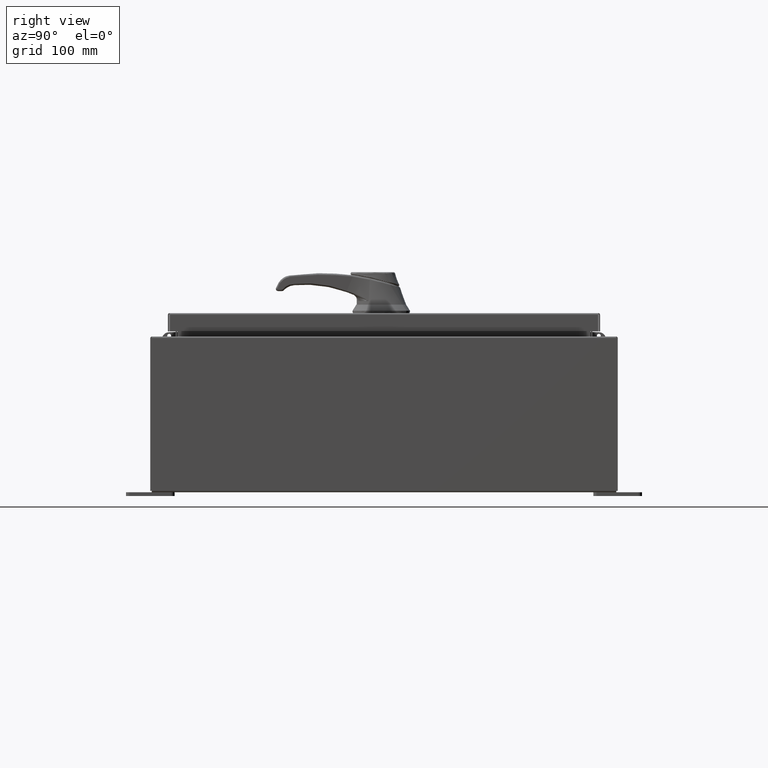
[diagram: clean part render]
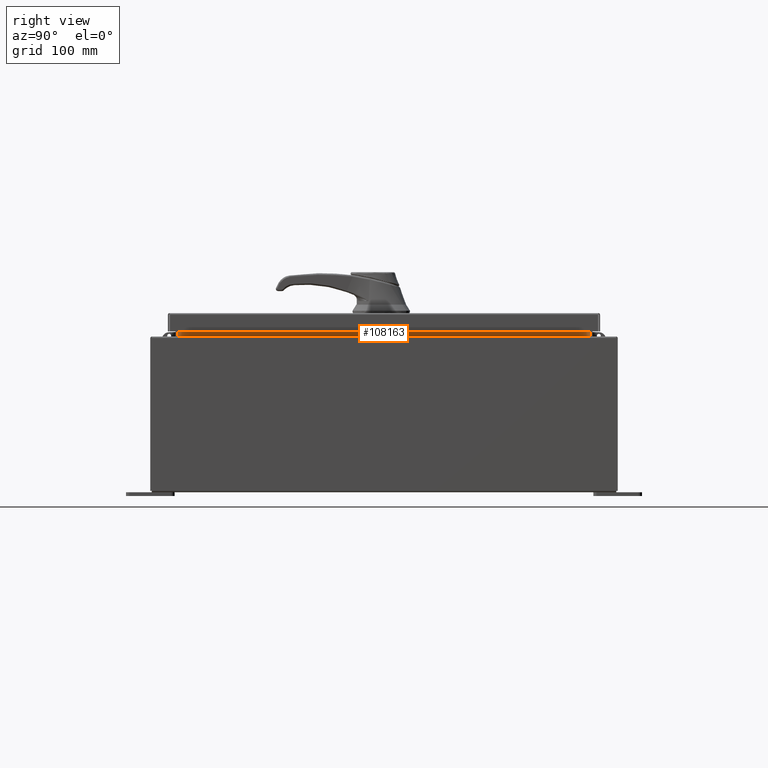
[diagram: same view with one face highlighted and labeled with its STEP entity id]
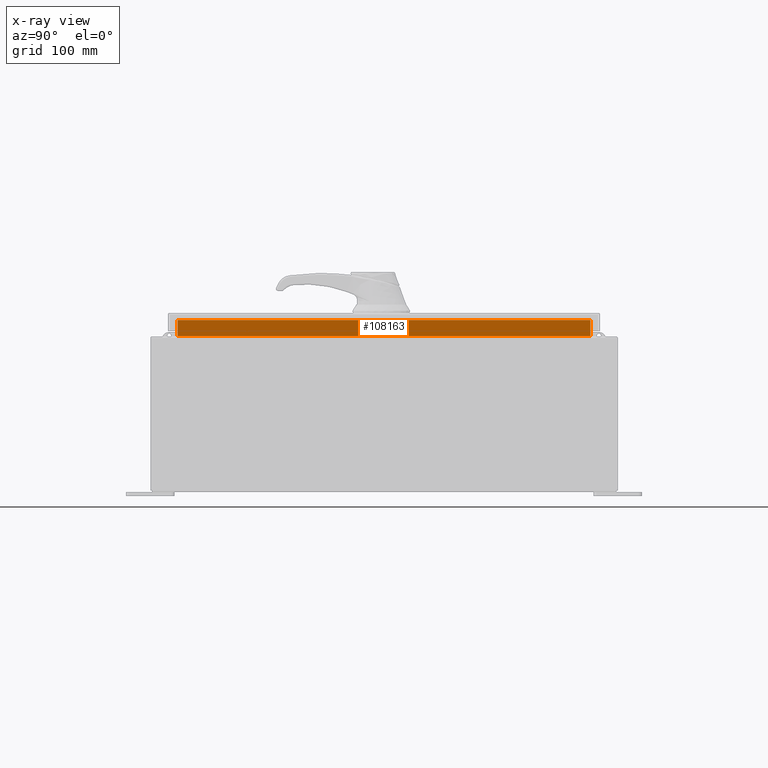
[diagram: x-ray of the same camera — body ghosted, the highlighted face saturated]
A machine part, right view. The second image highlights one B-rep face of the part: STEP entity #108163.
The next image is the same camera in x-ray: the body ghosted, the highlighted face saturated — about 0% of this face is hidden behind the body in this view.
In plain terms, the highlighted planar face has unit normal (1, -0, -0).
Its self-contained STEP definition (entity closure, byte-faithful):
#397 = EDGE_CURVE ( 'NONE', #18403, #66535, #106614, .T. ) ;
#1122 = ORIENTED_EDGE ( 'NONE', *, *, #397, .F. ) ;
#3868 = EDGE_CURVE ( 'NONE', #8913, #95774, #58158, .T. ) ;
#4200 = DIRECTION ( 'NONE',  ( -2.361913319930196000E-015, 0.0000000000000000000, -1.000000000000000000 ) ) ;
#6934 = VECTOR ( 'NONE', #53640, 39.37007874015748100 ) ;
#8913 = VERTEX_POINT ( 'NONE', #108267 ) ;
#9514 = ORIENTED_EDGE ( 'NONE', *, *, #97427, .F. ) ;
#14646 = LINE ( 'NONE', #56740, #38024 ) ;
#18403 = VERTEX_POINT ( 'NONE', #54252 ) ;
#19692 = ORIENTED_EDGE ( 'NONE', *, *, #3868, .F. ) ;
#30590 = EDGE_LOOP ( 'NONE', ( #19692, #69615, #1122, #9514 ) ) ;
#35130 = DIRECTION ( 'NONE',  ( 2.361913319930198800E-015, -0.0000000000000000000, 1.000000000000000000 ) ) ;
#38024 = VECTOR ( 'NONE', #47577, 39.37007874015748100 ) ;
#39224 = CARTESIAN_POINT ( 'NONE',  ( 10.69970000000003000, -10.59375000000000200, 8.762900000000009000 ) ) ;
#47577 = DIRECTION ( 'NONE',  ( 0.0000000000000000000, 1.000000000000000000, 0.0000000000000000000 ) ) ;
#50398 = AXIS2_PLACEMENT_3D ( 'NONE', #82822, #56679, #4200 ) ;
#53640 = DIRECTION ( 'NONE',  ( 1.031494227696241200E-016, -1.000000000000000000, 3.094482683088723800E-016 ) ) ;
#54252 = CARTESIAN_POINT ( 'NONE',  ( 10.69970000000002800, -10.59375000000000200, 7.938300000000011500 ) ) ;
#56679 = DIRECTION ( 'NONE',  ( 1.000000000000000000, -1.218149977913431200E-031, -2.361913319930196000E-015 ) ) ;
#56740 = CARTESIAN_POINT ( 'NONE',  ( 10.69970000000003200, -10.59375000000000000, 8.762900000000009000 ) ) ;
#58158 = LINE ( 'NONE', #100504, #73238 ) ;
#66535 = VERTEX_POINT ( 'NONE', #39224 ) ;
#69615 = ORIENTED_EDGE ( 'NONE', *, *, #82975, .F. ) ;
#73238 = VECTOR ( 'NONE', #109321, 39.37007874015748100 ) ;
#76899 = LINE ( 'NONE', #97346, #6934 ) ;
#82822 = CARTESIAN_POINT ( 'NONE',  ( 10.69970000000000900, -1.303383931868035000E-030, -2.527176394925713800E-014 ) ) ;
#82975 = EDGE_CURVE ( 'NONE', #66535, #8913, #14646, .T. ) ;
#83314 = VECTOR ( 'NONE', #35130, 39.37007874015748100 ) ;
#87267 = CARTESIAN_POINT ( 'NONE',  ( 10.69970000000003000, -10.59375000000000200, 8.850600000000008900 ) ) ;
#95774 = VERTEX_POINT ( 'NONE', #102982 ) ;
#97346 = CARTESIAN_POINT ( 'NONE',  ( 10.69970000000002800, 10.59374999999999600, 7.938300000000008800 ) ) ;
#97427 = EDGE_CURVE ( 'NONE', #95774, #18403, #76899, .T. ) ;
#98928 = FACE_OUTER_BOUND ( 'NONE', #30590, .T. ) ;
#100504 = CARTESIAN_POINT ( 'NONE',  ( 10.69970000000002800, 10.59374999999999600, 7.925300000000008900 ) ) ;
#102982 = CARTESIAN_POINT ( 'NONE',  ( 10.69970000000002800, 10.59374999999998400, 7.938300000000011500 ) ) ;
#106614 = LINE ( 'NONE', #87267, #83314 ) ;
#108163 = ADVANCED_FACE ( 'NONE', ( #98928 ), #109221, .T. ) ;
#108267 = CARTESIAN_POINT ( 'NONE',  ( 10.69970000000003200, 10.59374999999999600, 8.762900000000009000 ) ) ;
#109221 = PLANE ( 'NONE',  #50398 ) ;
#109321 = DIRECTION ( 'NONE',  ( -2.361913319930196000E-015, -0.0000000000000000000, -1.000000000000000000 ) ) ;